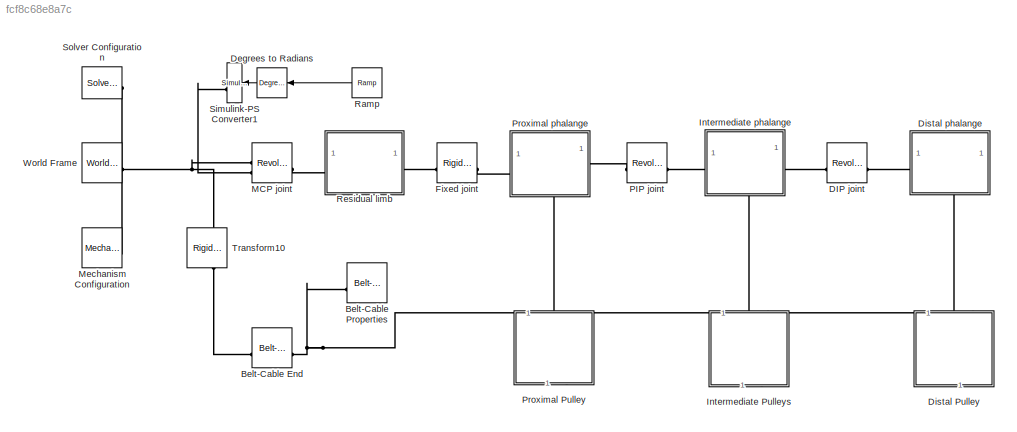
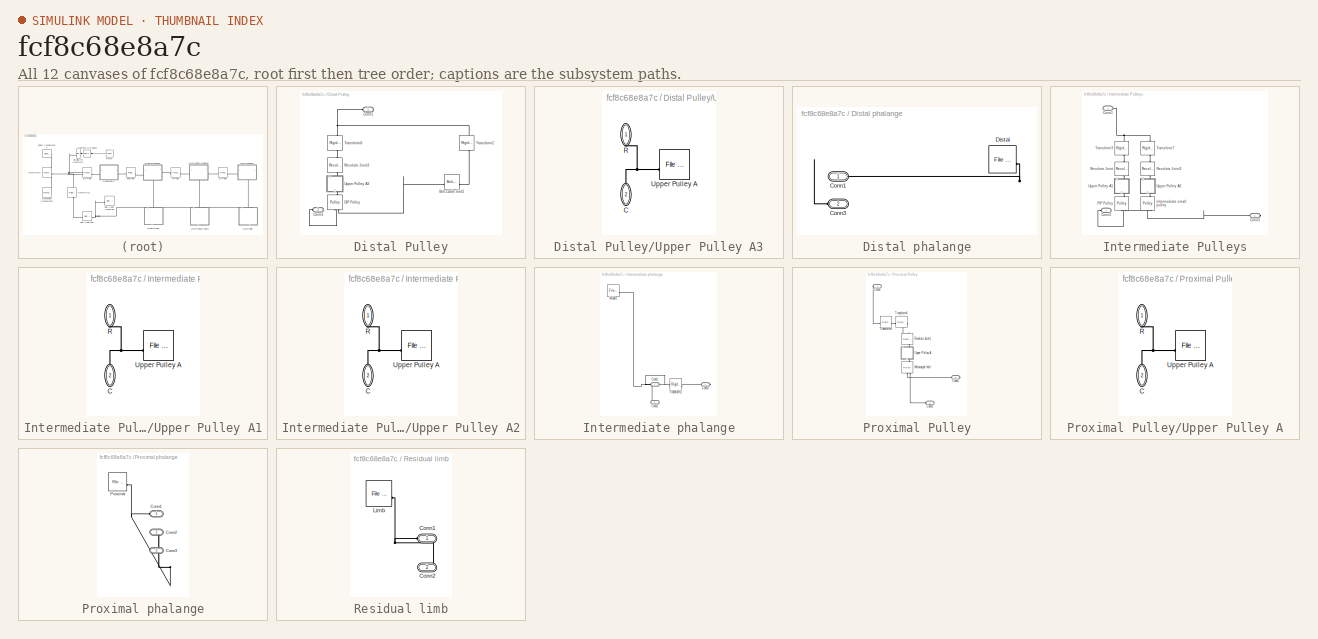
[diagram: thumbnail index - all 12 canvases of the model, root first then tree order]
MODEL slx_fcf8c68e8a7c
KIND model
CONFIG AbsTol = auto
CONFIG EnableMultiTasking = off
CONFIG FixedStep = .01
CONFIG InitFcn = Offset = 2;\nspringRevPIP = 51.5+Offset;\nspringRevDIP = 51.5-Offset;
CONFIG MaxStep = auto
CONFIG MinStep = auto
CONFIG RelTol = 1e-3
CONFIG SampleTimeConstraint = Unconstrained
CONFIG SolverName = ode45
CONFIG StartTime = 0.0
CONFIG StopTime = 60
BLOCK [Reference] Belt-Cable End  REF=sm_lib/Belts and Cables/Belt-Cable End
  SourceBlock = sm_lib/Belts and Cables/Belt-Cable End
  SourceType = Belt-Cable End
BLOCK [Reference] Belt-Cable Properties  REF=sm_lib/Belts and Cables/Belt-Cable
Properties
  SourceBlock = sm_lib/Belts and Cables/Belt-Cable\nProperties
  SourceType = Belt-Cable\nProperties
BLOCK [Reference] DIP joint  REF=sm_lib/Joints/Revolute Joint
  NameLocation = top
  SourceBlock = sm_lib/Joints/Revolute Joint
  SourceType = Revolute Joint
BLOCK [Reference] Degrees to Radians  REF=simulink_extras/Transformations/Degrees to
Radians
  SourceBlock = simulink_extras/Transformations/Degrees to\nRadians
  SourceType = DegreesToRadians
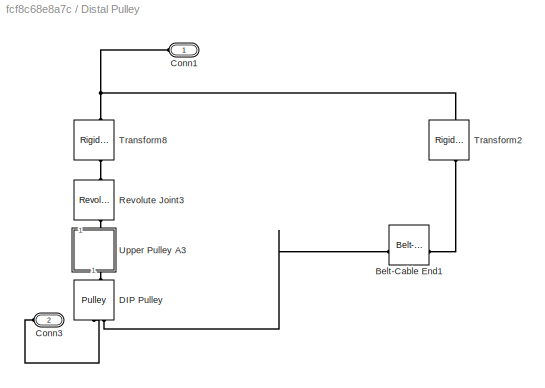
BLOCK [SubSystem] Distal Pulley
  NameLocation = left
  PortSchema = {"entries":[{"content":{"sides":[{"content":{"connectorIds":["LConn1"]},"type":"ConnectorPlacement.EquallySpacedRectSide","uuid":"1863dc05-f25c-416d-a169-01e96b7ec287"},{"content":{"side":"RIGHT"},"type":"ConnectorPlacement.EquallySpacedRectSide","uuid":"4051f64d-96d7-4355-aba6-70d51236bce4"},{"content":{"connectorIds":["LConn2"],"side":"TOP"},"type":"ConnectorPlacement.EquallySpacedRectSide","uui...<+353ch>
  ShowPortLabels = none
BLOCK [Reference] Distal Pulley/Belt-Cable End1  REF=sm_lib/Belts and Cables/Belt-Cable End
  SourceBlock = sm_lib/Belts and Cables/Belt-Cable End
  SourceType = Belt-Cable End
BLOCK [PMIOPort] Distal Pulley/Conn1
  Side = Left
BLOCK [PMIOPort] Distal Pulley/Conn3
  Port = 2
  Side = Left
BLOCK [Reference] Distal Pulley/DIP Pulley  REF=sm_lib/Belts and Cables/Pulley
  NameLocation = left
  SourceBlock = sm_lib/Belts and Cables/Pulley
  SourceType = Pulley
BLOCK [Reference] Distal Pulley/Revolute Joint3  REF=sm_lib/Joints/Revolute Joint
  NameLocation = left
  SourceBlock = sm_lib/Joints/Revolute Joint
  SourceType = Revolute Joint
BLOCK [Reference] Distal Pulley/Transform2  REF=sm_lib/Frames and
Transforms/Rigid
Transform
  NameLocation = right
  SourceBlock = sm_lib/Frames and\nTransforms/Rigid\nTransform
  SourceType = Rigid\nTransform
BLOCK [Reference] Distal Pulley/Transform8  REF=sm_lib/Frames and
Transforms/Rigid
Transform
  NameLocation = right
  SourceBlock = sm_lib/Frames and\nTransforms/Rigid\nTransform
  SourceType = Rigid\nTransform
BLOCK [SubSystem] Distal Pulley/Upper Pulley A3
  NameLocation = right
BLOCK [PMIOPort] Distal Pulley/Upper Pulley A3/C
  NameLocation = left
  Port = 2
  Side = Right
BLOCK [PMIOPort] Distal Pulley/Upper Pulley A3/R
  NameLocation = left
  Side = Left
BLOCK [Reference] Distal Pulley/Upper Pulley A3/Upper Pulley A   REF=sm_lib/Body Elements/File Solid
  SourceBlock = sm_lib/Body Elements/File Solid
  SourceType = File Solid
BLOCK [SubSystem] Distal phalange
  NameLocation = top
  PortSchema = {"entries":[{"content":{"sides":[{"content":{"connectorIds":["LConn1"]},"type":"ConnectorPlacement.EquallySpacedRectSide","uuid":"b25b0000-92be-4936-a230-fbc0db946bc0"},{"content":{"side":"RIGHT"},"type":"ConnectorPlacement.EquallySpacedRectSide","uuid":"a8562f2c-ceca-422c-a6b7-bdec44f9ce3e"},{"content":{"side":"TOP"},"type":"ConnectorPlacement.EquallySpacedRectSide","uuid":"d5bc847f-9c78-483e-ae4...<+353ch>
  ShowPortLabels = none
BLOCK [PMIOPort] Distal phalange/Conn1
  Side = Left
BLOCK [PMIOPort] Distal phalange/Conn3
  Port = 2
  Side = Right
BLOCK [Reference] Distal phalange/Distal  REF=sm_lib/Body Elements/File Solid
  SourceBlock = sm_lib/Body Elements/File Solid
  SourceType = File Solid
BLOCK [Reference] Fixed joint  REF=sm_lib/Frames and
Transforms/Rigid
Transform
  NameLocation = top
  SourceBlock = sm_lib/Frames and\nTransforms/Rigid\nTransform
  SourceType = Rigid\nTransform
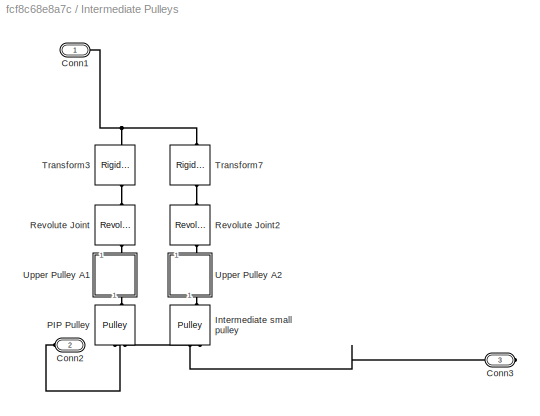
BLOCK [SubSystem] Intermediate Pulleys
  NameLocation = left
  PortSchema = {"entries":[{"content":{"sides":[{"content":{"connectorIds":["LConn1"]},"type":"ConnectorPlacement.EquallySpacedRectSide","uuid":"1863dc05-f25c-416d-a169-01e96b7ec287"},{"content":{"side":"RIGHT"},"type":"ConnectorPlacement.EquallySpacedRectSide","uuid":"4051f64d-96d7-4355-aba6-70d51236bce4"},{"content":{"connectorIds":["LConn2"],"side":"TOP"},"type":"ConnectorPlacement.EquallySpacedRectSide","uui...<+379ch>
  ShowPortLabels = none
BLOCK [PMIOPort] Intermediate Pulleys/Conn1
  Side = Left
BLOCK [PMIOPort] Intermediate Pulleys/Conn2
  Port = 2
  Side = Left
BLOCK [PMIOPort] Intermediate Pulleys/Conn3
  Port = 3
  Side = Right
BLOCK [Reference] Intermediate Pulleys/Intermediate small pulley  REF=sm_lib/Belts and Cables/Pulley
  NameLocation = left
  SourceBlock = sm_lib/Belts and Cables/Pulley
  SourceType = Pulley
BLOCK [Reference] Intermediate Pulleys/PIP Pulley  REF=sm_lib/Belts and Cables/Pulley
  NameLocation = left
  SourceBlock = sm_lib/Belts and Cables/Pulley
  SourceType = Pulley
BLOCK [Reference] Intermediate Pulleys/Revolute Joint  REF=sm_lib/Joints/Revolute Joint
  NameLocation = left
  SourceBlock = sm_lib/Joints/Revolute Joint
  SourceType = Revolute Joint
BLOCK [Reference] Intermediate Pulleys/Revolute Joint2  REF=sm_lib/Joints/Revolute Joint
  NameLocation = left
  SourceBlock = sm_lib/Joints/Revolute Joint
  SourceType = Revolute Joint
BLOCK [Reference] Intermediate Pulleys/Transform3  REF=sm_lib/Frames and
Transforms/Rigid
Transform
  NameLocation = right
  SourceBlock = sm_lib/Frames and\nTransforms/Rigid\nTransform
  SourceType = Rigid\nTransform
BLOCK [Reference] Intermediate Pulleys/Transform7  REF=sm_lib/Frames and
Transforms/Rigid
Transform
  NameLocation = right
  SourceBlock = sm_lib/Frames and\nTransforms/Rigid\nTransform
  SourceType = Rigid\nTransform
BLOCK [SubSystem] Intermediate Pulleys/Upper Pulley A1
  NameLocation = right
BLOCK [PMIOPort] Intermediate Pulleys/Upper Pulley A1/C
  NameLocation = left
  Port = 2
  Side = Right
BLOCK [PMIOPort] Intermediate Pulleys/Upper Pulley A1/R
  NameLocation = left
  Side = Left
BLOCK [Reference] Intermediate Pulleys/Upper Pulley A1/Upper Pulley A   REF=sm_lib/Body Elements/File Solid
  SourceBlock = sm_lib/Body Elements/File Solid
  SourceType = File Solid
BLOCK [SubSystem] Intermediate Pulleys/Upper Pulley A2
  NameLocation = right
BLOCK [PMIOPort] Intermediate Pulleys/Upper Pulley A2/C
  NameLocation = left
  Port = 2
  Side = Right
BLOCK [PMIOPort] Intermediate Pulleys/Upper Pulley A2/R
  NameLocation = left
  Side = Left
BLOCK [Reference] Intermediate Pulleys/Upper Pulley A2/Upper Pulley A   REF=sm_lib/Body Elements/File Solid
  SourceBlock = sm_lib/Body Elements/File Solid
  SourceType = File Solid
BLOCK [SubSystem] Intermediate phalange
  NameLocation = top
  PortSchema = {"entries":[{"content":{"sides":[{"content":{"connectorIds":["LConn1"]},"type":"ConnectorPlacement.EquallySpacedRectSide","uuid":"1863dc05-f25c-416d-a169-01e96b7ec287"},{"content":{"connectorIds":["RConn1"],"side":"RIGHT"},"type":"ConnectorPlacement.EquallySpacedRectSide","uuid":"4051f64d-96d7-4355-aba6-70d51236bce4"},{"content":{"side":"TOP"},"type":"ConnectorPlacement.EquallySpacedRectSide","uui...<+379ch>
  ShowPortLabels = none
BLOCK [PMIOPort] Intermediate phalange/Conn1
  Side = Left
BLOCK [PMIOPort] Intermediate phalange/Conn2
  Port = 3
  Side = Right
BLOCK [PMIOPort] Intermediate phalange/Conn3
  Port = 2
  Side = Right
BLOCK [Reference] Intermediate phalange/Middle  REF=sm_lib/Body Elements/File Solid
  SourceBlock = sm_lib/Body Elements/File Solid
  SourceType = File Solid
BLOCK [Reference] Intermediate phalange/Transform1  REF=sm_lib/Frames and
Transforms/Rigid
Transform
  SourceBlock = sm_lib/Frames and\nTransforms/Rigid\nTransform
  SourceType = Rigid\nTransform
BLOCK [Reference] MCP joint  REF=sm_lib/Joints/Revolute Joint
  NameLocation = top
  SourceBlock = sm_lib/Joints/Revolute Joint
  SourceType = Revolute Joint
BLOCK [Reference] Mechanism Configuration  REF=sm_lib/Utilities/Mechanism
Configuration
  SourceBlock = sm_lib/Utilities/Mechanism\nConfiguration
  SourceType = Mechanism\nConfiguration
BLOCK [Reference] PIP joint  REF=sm_lib/Joints/Revolute Joint
  NameLocation = top
  SourceBlock = sm_lib/Joints/Revolute Joint
  SourceType = Revolute Joint
BLOCK [SubSystem] Proximal Pulley
  NameLocation = left
  PortSchema = {"entries":[{"content":{"sides":[{"content":{"connectorIds":["LConn1"]},"type":"ConnectorPlacement.EquallySpacedRectSide","uuid":"1863dc05-f25c-416d-a169-01e96b7ec287"},{"content":{"side":"RIGHT"},"type":"ConnectorPlacement.EquallySpacedRectSide","uuid":"4051f64d-96d7-4355-aba6-70d51236bce4"},{"content":{"connectorIds":["LConn2"],"side":"TOP"},"type":"ConnectorPlacement.EquallySpacedRectSide","uui...<+379ch>
  ShowPortLabels = none
BLOCK [PMIOPort] Proximal Pulley/Conn1
  Side = Left
BLOCK [PMIOPort] Proximal Pulley/Conn2
  Port = 3
  Side = Right
BLOCK [PMIOPort] Proximal Pulley/Conn3
  Port = 2
  Side = Left
BLOCK [Reference] Proximal Pulley/Metacarpal hole  REF=sm_lib/Belts and Cables/Pulley
  NameLocation = left
  SourceBlock = sm_lib/Belts and Cables/Pulley
  SourceType = Pulley
BLOCK [Reference] Proximal Pulley/Revolute Joint1  REF=sm_lib/Joints/Revolute Joint
  NameLocation = left
  SourceBlock = sm_lib/Joints/Revolute Joint
  SourceType = Revolute Joint
BLOCK [Reference] Proximal Pulley/Transform4  REF=sm_lib/Frames and
Transforms/Rigid
Transform
  SourceBlock = sm_lib/Frames and\nTransforms/Rigid\nTransform
  SourceType = Rigid\nTransform
BLOCK [Reference] Proximal Pulley/Transform6  REF=sm_lib/Frames and
Transforms/Rigid
Transform
  SourceBlock = sm_lib/Frames and\nTransforms/Rigid\nTransform
  SourceType = Rigid\nTransform
BLOCK [SubSystem] Proximal Pulley/Upper Pulley A
  NameLocation = right
BLOCK [PMIOPort] Proximal Pulley/Upper Pulley A/C
  NameLocation = left
  Port = 2
  Side = Right
BLOCK [PMIOPort] Proximal Pulley/Upper Pulley A/R
  NameLocation = left
  Side = Left
BLOCK [Reference] Proximal Pulley/Upper Pulley A/Upper Pulley A   REF=sm_lib/Body Elements/File Solid
  SourceBlock = sm_lib/Body Elements/File Solid
  SourceType = File Solid
BLOCK [SubSystem] Proximal phalange
  NameLocation = top
  PortSchema = {"entries":[{"content":{"sides":[{"content":{"connectorIds":["LConn1"]},"type":"ConnectorPlacement.EquallySpacedRectSide","uuid":"1863dc05-f25c-416d-a169-01e96b7ec287"},{"content":{"connectorIds":["RConn1"],"side":"RIGHT"},"type":"ConnectorPlacement.EquallySpacedRectSide","uuid":"4051f64d-96d7-4355-aba6-70d51236bce4"},{"content":{"side":"TOP"},"type":"ConnectorPlacement.EquallySpacedRectSide","uui...<+379ch>
  ShowPortLabels = none
BLOCK [PMIOPort] Proximal phalange/Conn1
  Side = Left
BLOCK [PMIOPort] Proximal phalange/Conn2
  Port = 2
  Side = Right
BLOCK [PMIOPort] Proximal phalange/Conn3
  Port = 3
  Side = Right
BLOCK [Reference] Proximal phalange/Proximal  REF=sm_lib/Body Elements/File Solid
  SourceBlock = sm_lib/Body Elements/File Solid
  SourceType = File Solid
BLOCK [Reference] Ramp  REF=simulink/Sources/Ramp
  SourceBlock = simulink/Sources/Ramp
  SourceType = Ramp
BLOCK [SubSystem] Residual limb
  NameLocation = top
  ShowPortLabels = none
BLOCK [PMIOPort] Residual limb/Conn1
  Side = Left
BLOCK [PMIOPort] Residual limb/Conn2
  Port = 2
  Side = Right
BLOCK [Reference] Residual limb/Limb  REF=sm_lib/Body Elements/File Solid
  SourceBlock = sm_lib/Body Elements/File Solid
  SourceType = File Solid
BLOCK [Reference] Simulink-PS Converter1  REF=nesl_utility/Simulink-PS
Converter
  SourceBlock = nesl_utility/Simulink-PS\nConverter
  SourceType = Simulink-PS\nConverter
BLOCK [Reference] Solver Configuration  REF=nesl_utility/Solver
Configuration
  SourceBlock = nesl_utility/Solver\nConfiguration
  SourceType = Solver\nConfiguration
BLOCK [Reference] Transform10  REF=sm_lib/Frames and
Transforms/Rigid
Transform
  NameLocation = left
  SourceBlock = sm_lib/Frames and\nTransforms/Rigid\nTransform
  SourceType = Rigid\nTransform
BLOCK [Reference] World Frame  REF=sm_lib/Frames and
Transforms/World Frame
  SourceBlock = sm_lib/Frames and\nTransforms/World Frame
  SourceType = World Frame
LINE Degrees to Radians:1 -> Simulink-PS Converter1:1
LINE Ramp:1 -> Degrees to Radians:1
PLINE Belt-Cable End:LConn1 -- Transform10:RConn1
PNET net1: Belt-Cable End:RConn1 -- Belt-Cable Properties:LConn1 -- Proximal Pulley:LConn2
PLINE DIP joint:LConn1 -- Intermediate phalange:RConn1
PLINE DIP joint:RConn1 -- Distal phalange:LConn1
PLINE Distal Pulley/Belt-Cable End1:LConn1 -- Distal Pulley/Transform2:RConn1
PLINE Distal Pulley/Belt-Cable End1:RConn1 -- Distal Pulley/DIP Pulley:RConn2
PNET net2: Distal Pulley/Conn1:RConn1 -- Distal Pulley/Transform2:LConn1 -- Distal Pulley/Transform8:LConn1
PLINE Distal Pulley/Conn3:RConn1 -- Distal Pulley/DIP Pulley:RConn1
PLINE Distal Pulley/DIP Pulley:LConn1 -- Distal Pulley/Upper Pulley A3:RConn1
PLINE Distal Pulley/Revolute Joint3:LConn1 -- Distal Pulley/Transform8:RConn1
PLINE Distal Pulley/Revolute Joint3:RConn1 -- Distal Pulley/Upper Pulley A3:LConn1
PNET net3: Distal Pulley/Upper Pulley A3/C:RConn1 -- Distal Pulley/Upper Pulley A3/R:RConn1 -- Distal Pulley/Upper Pulley A3/Upper Pulley A :LConn1
PLINE Distal Pulley:LConn1 -- Distal phalange:RConn1
PLINE Distal Pulley:LConn2 -- Intermediate Pulleys:RConn1
PNET net4: Distal phalange/Conn1:RConn1 -- Distal phalange/Conn3:RConn1 -- Distal phalange/Distal:RConn1
PLINE Fixed joint:LConn1 -- Residual limb:RConn1
PLINE Fixed joint:RConn1 -- Proximal phalange:LConn1
PNET net5: Intermediate Pulleys/Conn1:RConn1 -- Intermediate Pulleys/Transform3:LConn1 -- Intermediate Pulleys/Transform7:LConn1
PLINE Intermediate Pulleys/Conn2:RConn1 -- Intermediate Pulleys/PIP Pulley:RConn1
PLINE Intermediate Pulleys/Conn3:RConn1 -- Intermediate Pulleys/Intermediate small pulley:RConn1
PLINE Intermediate Pulleys/Intermediate small pulley:LConn1 -- Intermediate Pulleys/Upper Pulley A2:RConn1
PLINE Intermediate Pulleys/Intermediate small pulley:RConn2 -- Intermediate Pulleys/PIP Pulley:RConn2
PLINE Intermediate Pulleys/PIP Pulley:LConn1 -- Intermediate Pulleys/Upper Pulley A1:RConn1
PLINE Intermediate Pulleys/Revolute Joint2:LConn1 -- Intermediate Pulleys/Transform7:RConn1
PLINE Intermediate Pulleys/Revolute Joint2:RConn1 -- Intermediate Pulleys/Upper Pulley A2:LConn1
PLINE Intermediate Pulleys/Revolute Joint:LConn1 -- Intermediate Pulleys/Transform3:RConn1
PLINE Intermediate Pulleys/Revolute Joint:RConn1 -- Intermediate Pulleys/Upper Pulley A1:LConn1
PNET net6: Intermediate Pulleys/Upper Pulley A1/C:RConn1 -- Intermediate Pulleys/Upper Pulley A1/R:RConn1 -- Intermediate Pulleys/Upper Pulley A1/Upper Pulley A :LConn1
PNET net7: Intermediate Pulleys/Upper Pulley A2/C:RConn1 -- Intermediate Pulleys/Upper Pulley A2/R:RConn1 -- Intermediate Pulleys/Upper Pulley A2/Upper Pulley A :LConn1
PLINE Intermediate Pulleys:LConn1 -- Intermediate phalange:RConn2
PLINE Intermediate Pulleys:LConn2 -- Proximal Pulley:RConn1
PNET net8: Intermediate phalange/Conn1:RConn1 -- Intermediate phalange/Conn2:RConn1 -- Intermediate phalange/Middle:RConn1 -- Intermediate phalange/Transform1:LConn1
PLINE Intermediate phalange/Conn3:RConn1 -- Intermediate phalange/Transform1:RConn1
PLINE Intermediate phalange:LConn1 -- PIP joint:RConn1
PNET net9: MCP joint:LConn1 -- Mechanism Configuration:RConn1 -- Solver Configuration:RConn1 -- Transform10:LConn1 -- World Frame:RConn1
PLINE MCP joint:LConn2 -- Simulink-PS Converter1:RConn1
PLINE MCP joint:RConn1 -- Residual limb:LConn1
PLINE PIP joint:LConn1 -- Proximal phalange:RConn1
PLINE Proximal Pulley/Conn1:RConn1 -- Proximal Pulley/Transform6:LConn1
PLINE Proximal Pulley/Conn2:RConn1 -- Proximal Pulley/Metacarpal hole:RConn1
PLINE Proximal Pulley/Conn3:RConn1 -- Proximal Pulley/Metacarpal hole:RConn2
PLINE Proximal Pulley/Metacarpal hole:LConn1 -- Proximal Pulley/Upper Pulley A:RConn1
PLINE Proximal Pulley/Revolute Joint1:LConn1 -- Proximal Pulley/Transform4:RConn1
PLINE Proximal Pulley/Revolute Joint1:RConn1 -- Proximal Pulley/Upper Pulley A:LConn1
PLINE Proximal Pulley/Transform4:LConn1 -- Proximal Pulley/Transform6:RConn1
PNET net10: Proximal Pulley/Upper Pulley A/C:RConn1 -- Proximal Pulley/Upper Pulley A/R:RConn1 -- Proximal Pulley/Upper Pulley A/Upper Pulley A :LConn1
PLINE Proximal Pulley:LConn1 -- Proximal phalange:RConn2
PNET net11: Proximal phalange/Conn1:RConn1 -- Proximal phalange/Conn2:RConn1 -- Proximal phalange/Conn3:RConn1 -- Proximal phalange/Proximal:RConn1
PNET net12: Residual limb/Conn1:RConn1 -- Residual limb/Conn2:RConn1 -- Residual limb/Limb:RConn1
note: PNET lines group multi-terminal physical nets as a canonical sorted terminal list (undirected conserving connections); 2-terminal nets keep the pairwise PLINE form
